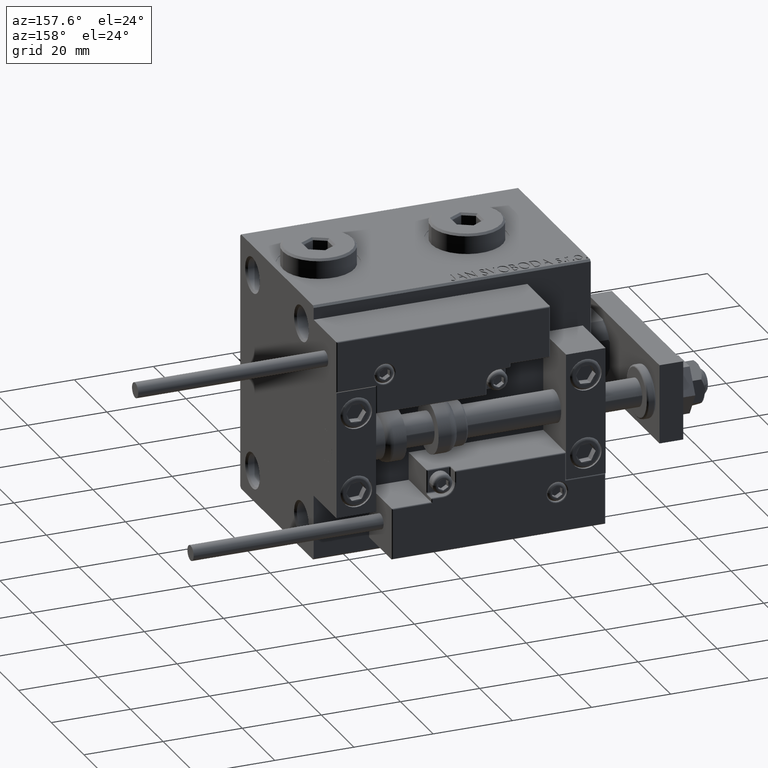
[diagram: clean part render]
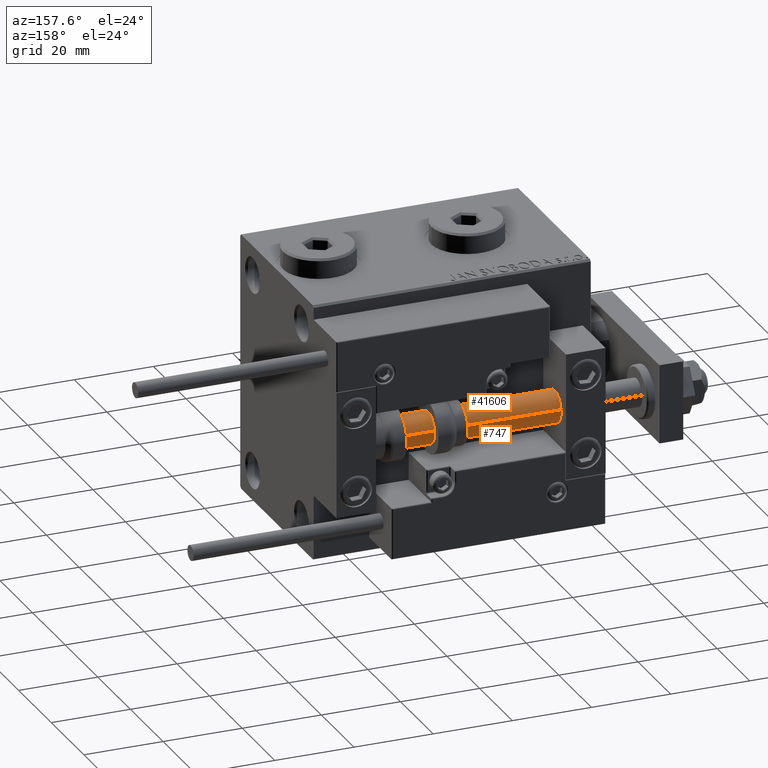
[diagram: same view with one multi-face feature highlighted, each face labeled with its STEP entity id]
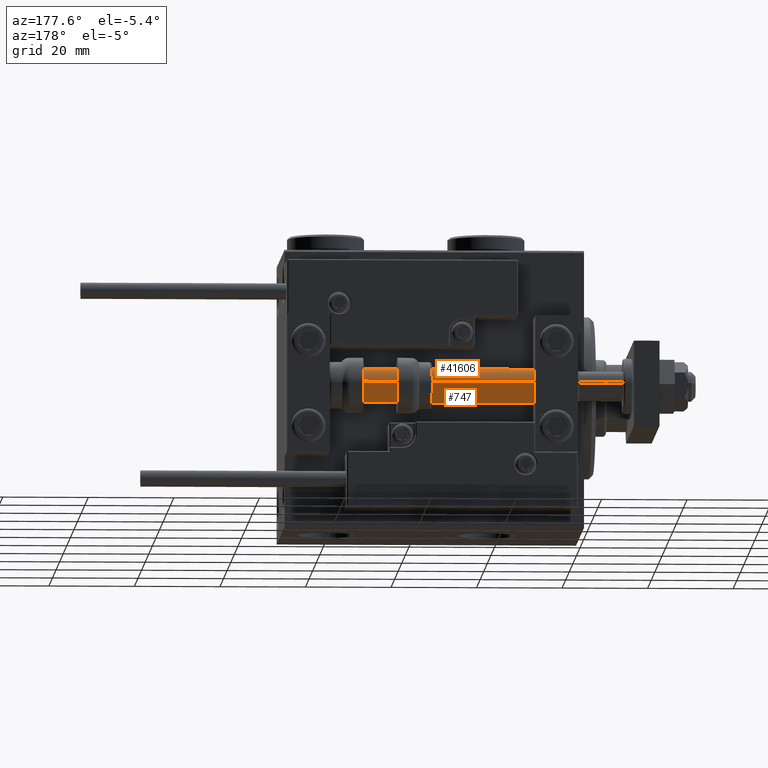
[diagram: same view with one multi-face feature highlighted, each face labeled with its STEP entity id]
A machine part, auxiliary view. The highlighted faces form ONE feature: a constant-radius fillet chain: 2 tangent blend faces with common blend radius 4 mm. The faces share edges in the B-rep.
A second angle (auxiliary view) of the same feature is appended — it is thin or edge-on in the first view.
Their STEP definitions:
[1] entity #747 (Cylinder):
#747 = ADVANCED_FACE ( 'NONE', ( #44636 ), #40906, .T. ) ;
#1206 = ORIENTED_EDGE ( 'NONE', *, *, #40239, .F. ) ;
#1473 = CARTESIAN_POINT ( 'NONE',  ( 4.000000000000000000, 4.898587196589412829E-16, 2.000000000000029310 ) ) ;
#2110 = ORIENTED_EDGE ( 'NONE', *, *, #19573, .T. ) ;
#2328 = DIRECTION ( 'NONE',  ( 0.000000000000000000, 0.000000000000000000, 1.000000000000000000 ) ) ;
#6567 = DIRECTION ( 'NONE',  ( 1.000000000000000000, 0.000000000000000000, 0.000000000000000000 ) ) ;
#7428 = CARTESIAN_POINT ( 'NONE',  ( 4.000000000000000000, 4.898587196589412829E-16, 70.00000000000000000 ) ) ;
#8206 = CARTESIAN_POINT ( 'NONE',  ( 0.000000000000000000, 0.000000000000000000, 70.00000000000000000 ) ) ;
#8341 = CARTESIAN_POINT ( 'NONE',  ( 0.000000000000000000, 0.000000000000000000, 2.000000000000029310 ) ) ;
#8409 = EDGE_CURVE ( 'NONE', #44565, #17896, #48100, .T. ) ;
#14771 = CARTESIAN_POINT ( 'NONE',  ( -4.000000000000000000, 0.000000000000000000, 70.00000000000000000 ) ) ;
#15574 = AXIS2_PLACEMENT_3D ( 'NONE', #8206, #45163, #20452 ) ;
#17896 = VERTEX_POINT ( 'NONE', #1473 ) ;
#19573 = EDGE_CURVE ( 'NONE', #41970, #44565, #30207, .T. ) ;
#20417 = CARTESIAN_POINT ( 'NONE',  ( -4.000000000000000000, 0.000000000000000000, 2.000000000000029310 ) ) ;
#20452 = DIRECTION ( 'NONE',  ( -1.000000000000000000, 0.000000000000000000, 0.000000000000000000 ) ) ;
#25109 = DIRECTION ( 'NONE',  ( -0.000000000000000000, -0.000000000000000000, 1.000000000000000000 ) ) ;
#25495 = ORIENTED_EDGE ( 'NONE', *, *, #8409, .T. ) ;
#29968 = CARTESIAN_POINT ( 'NONE',  ( 0.000000000000000000, 0.000000000000000000, 70.00000000000000000 ) ) ;
#30207 = LINE ( 'NONE', #14771, #41960 ) ;
#31950 = EDGE_CURVE ( 'NONE', #44172, #17896, #39086, .T. ) ;
#35091 = DIRECTION ( 'NONE',  ( -0.000000000000000000, -0.000000000000000000, -1.000000000000000000 ) ) ;
#36569 = CARTESIAN_POINT ( 'NONE',  ( -4.000000000000000000, 0.000000000000000000, 70.00000000000000000 ) ) ;
#38925 = CIRCLE ( 'NONE', #49091, 4.000000000000000000 ) ;
#39086 = LINE ( 'NONE', #7428, #45756 ) ;
#40176 = CARTESIAN_POINT ( 'NONE',  ( 4.000000000000000000, 4.898587196589412829E-16, 70.00000000000000000 ) ) ;
#40239 = EDGE_CURVE ( 'NONE', #41970, #44172, #38925, .T. ) ;
#40380 = ORIENTED_EDGE ( 'NONE', *, *, #31950, .F. ) ;
#40853 = EDGE_LOOP ( 'NONE', ( #40380, #1206, #2110, #25495 ) ) ;
#40906 = CYLINDRICAL_SURFACE ( 'NONE', #15574, 4.000000000000000000 ) ;
#41960 = VECTOR ( 'NONE', #46174, 1000.000000000000000 ) ;
#41970 = VERTEX_POINT ( 'NONE', #36569 ) ;
#44172 = VERTEX_POINT ( 'NONE', #40176 ) ;
#44565 = VERTEX_POINT ( 'NONE', #20417 ) ;
#44636 = FACE_OUTER_BOUND ( 'NONE', #40853, .T. ) ;
#45163 = DIRECTION ( 'NONE',  ( -0.000000000000000000, -0.000000000000000000, -1.000000000000000000 ) ) ;
#45575 = AXIS2_PLACEMENT_3D ( 'NONE', #8341, #25109, #48762 ) ;
#45756 = VECTOR ( 'NONE', #35091, 1000.000000000000000 ) ;
#46174 = DIRECTION ( 'NONE',  ( -0.000000000000000000, -0.000000000000000000, -1.000000000000000000 ) ) ;
#48100 = CIRCLE ( 'NONE', #45575, 4.000000000000000000 ) ;
#48762 = DIRECTION ( 'NONE',  ( 1.000000000000000000, 0.000000000000000000, 0.000000000000000000 ) ) ;
#49091 = AXIS2_PLACEMENT_3D ( 'NONE', #29968, #2328, #6567 ) ;
[2] entity #41606 (Cylinder):
#421 = CARTESIAN_POINT ( 'NONE',  ( 0.000000000000000000, 0.000000000000000000, 70.00000000000000000 ) ) ;
#1473 = CARTESIAN_POINT ( 'NONE',  ( 4.000000000000000000, 4.898587196589412829E-16, 2.000000000000029310 ) ) ;
#5429 = AXIS2_PLACEMENT_3D ( 'NONE', #33056, #49265, #12831 ) ;
#6002 = DIRECTION ( 'NONE',  ( -1.000000000000000000, 0.000000000000000000, 0.000000000000000000 ) ) ;
#6832 = DIRECTION ( 'NONE',  ( 1.000000000000000000, 0.000000000000000000, 0.000000000000000000 ) ) ;
#7428 = CARTESIAN_POINT ( 'NONE',  ( 4.000000000000000000, 4.898587196589412829E-16, 70.00000000000000000 ) ) ;
#11601 = CARTESIAN_POINT ( 'NONE',  ( 0.000000000000000000, 0.000000000000000000, 2.000000000000029310 ) ) ;
#12831 = DIRECTION ( 'NONE',  ( 1.000000000000000000, 0.000000000000000000, 0.000000000000000000 ) ) ;
#14771 = CARTESIAN_POINT ( 'NONE',  ( -4.000000000000000000, 0.000000000000000000, 70.00000000000000000 ) ) ;
#15224 = EDGE_CURVE ( 'NONE', #44172, #41970, #19018, .T. ) ;
#16104 = ORIENTED_EDGE ( 'NONE', *, *, #15224, .F. ) ;
#16642 = DIRECTION ( 'NONE',  ( -0.000000000000000000, -0.000000000000000000, -1.000000000000000000 ) ) ;
#17896 = VERTEX_POINT ( 'NONE', #1473 ) ;
#19018 = CIRCLE ( 'NONE', #5429, 4.000000000000000000 ) ;
#19171 = EDGE_LOOP ( 'NONE', ( #16104, #31363, #37449, #20525 ) ) ;
#19573 = EDGE_CURVE ( 'NONE', #41970, #44565, #30207, .T. ) ;
#20417 = CARTESIAN_POINT ( 'NONE',  ( -4.000000000000000000, 0.000000000000000000, 2.000000000000029310 ) ) ;
#20525 = ORIENTED_EDGE ( 'NONE', *, *, #19573, .F. ) ;
#22877 = EDGE_CURVE ( 'NONE', #17896, #44565, #25155, .T. ) ;
#24611 = FACE_OUTER_BOUND ( 'NONE', #19171, .T. ) ;
#25155 = CIRCLE ( 'NONE', #45539, 4.000000000000000000 ) ;
#30207 = LINE ( 'NONE', #14771, #41960 ) ;
#31363 = ORIENTED_EDGE ( 'NONE', *, *, #31950, .T. ) ;
#31950 = EDGE_CURVE ( 'NONE', #44172, #17896, #39086, .T. ) ;
#33056 = CARTESIAN_POINT ( 'NONE',  ( 0.000000000000000000, 0.000000000000000000, 70.00000000000000000 ) ) ;
#35091 = DIRECTION ( 'NONE',  ( -0.000000000000000000, -0.000000000000000000, -1.000000000000000000 ) ) ;
#36569 = CARTESIAN_POINT ( 'NONE',  ( -4.000000000000000000, 0.000000000000000000, 70.00000000000000000 ) ) ;
#36824 = CYLINDRICAL_SURFACE ( 'NONE', #44032, 4.000000000000000000 ) ;
#37449 = ORIENTED_EDGE ( 'NONE', *, *, #22877, .T. ) ;
#39086 = LINE ( 'NONE', #7428, #45756 ) ;
#40176 = CARTESIAN_POINT ( 'NONE',  ( 4.000000000000000000, 4.898587196589412829E-16, 70.00000000000000000 ) ) ;
#41606 = ADVANCED_FACE ( 'NONE', ( #24611 ), #36824, .T. ) ;
#41960 = VECTOR ( 'NONE', #46174, 1000.000000000000000 ) ;
#41970 = VERTEX_POINT ( 'NONE', #36569 ) ;
#44032 = AXIS2_PLACEMENT_3D ( 'NONE', #421, #16642, #6002 ) ;
#44172 = VERTEX_POINT ( 'NONE', #40176 ) ;
#44292 = DIRECTION ( 'NONE',  ( -0.000000000000000000, -0.000000000000000000, 1.000000000000000000 ) ) ;
#44565 = VERTEX_POINT ( 'NONE', #20417 ) ;
#45539 = AXIS2_PLACEMENT_3D ( 'NONE', #11601, #44292, #6832 ) ;
#45756 = VECTOR ( 'NONE', #35091, 1000.000000000000000 ) ;
#46174 = DIRECTION ( 'NONE',  ( -0.000000000000000000, -0.000000000000000000, -1.000000000000000000 ) ) ;
#49265 = DIRECTION ( 'NONE',  ( 0.000000000000000000, 0.000000000000000000, 1.000000000000000000 ) ) ;